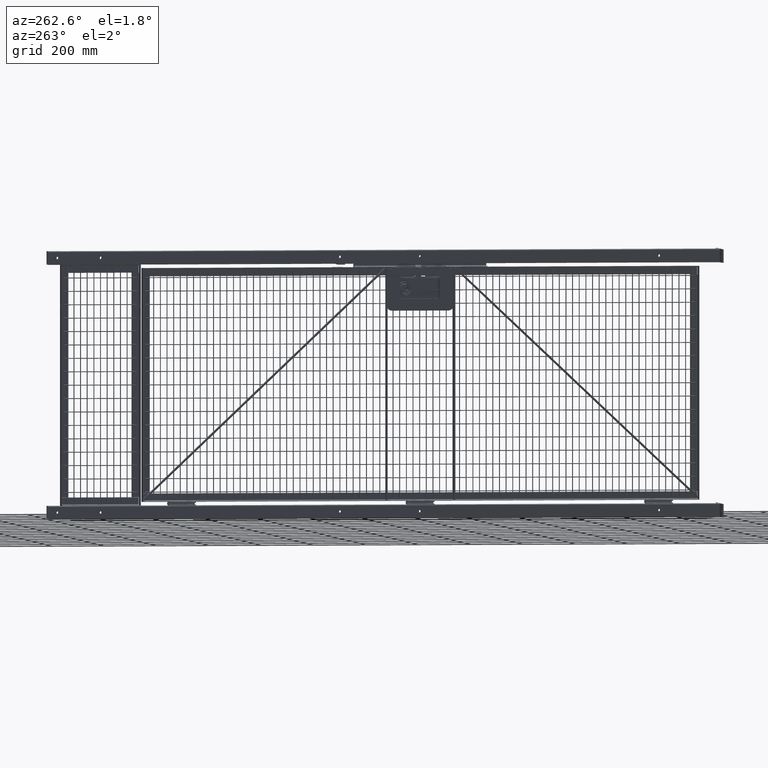
[diagram: clean part render]
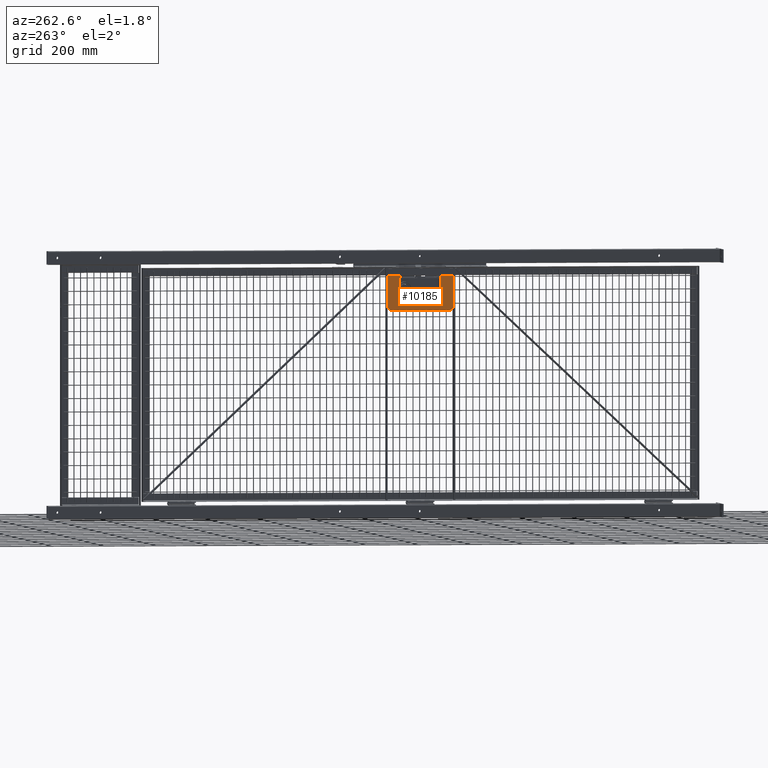
[diagram: same view with one face highlighted and labeled with its STEP entity id]
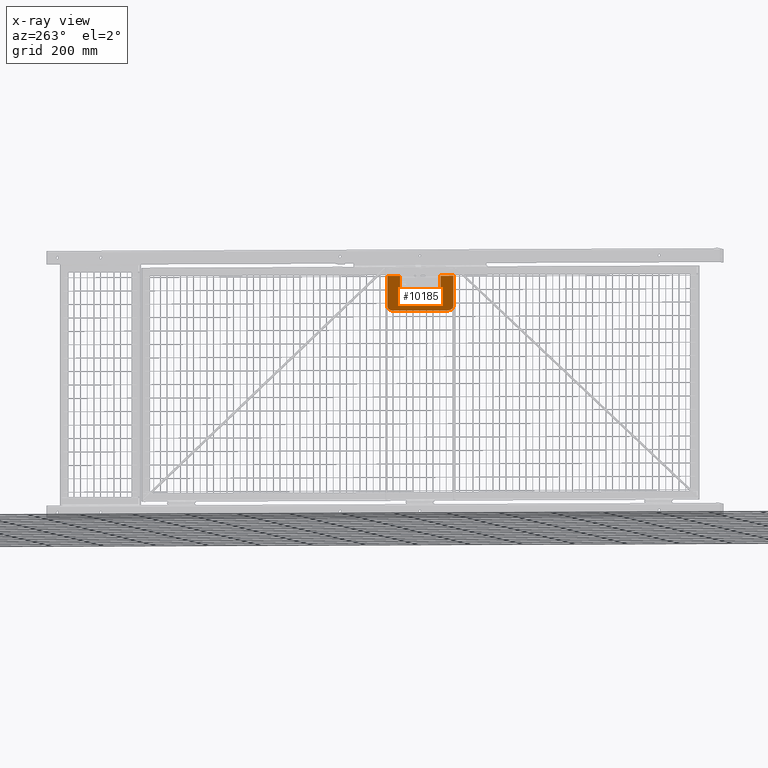
[diagram: x-ray of the same camera — body ghosted, the highlighted face saturated]
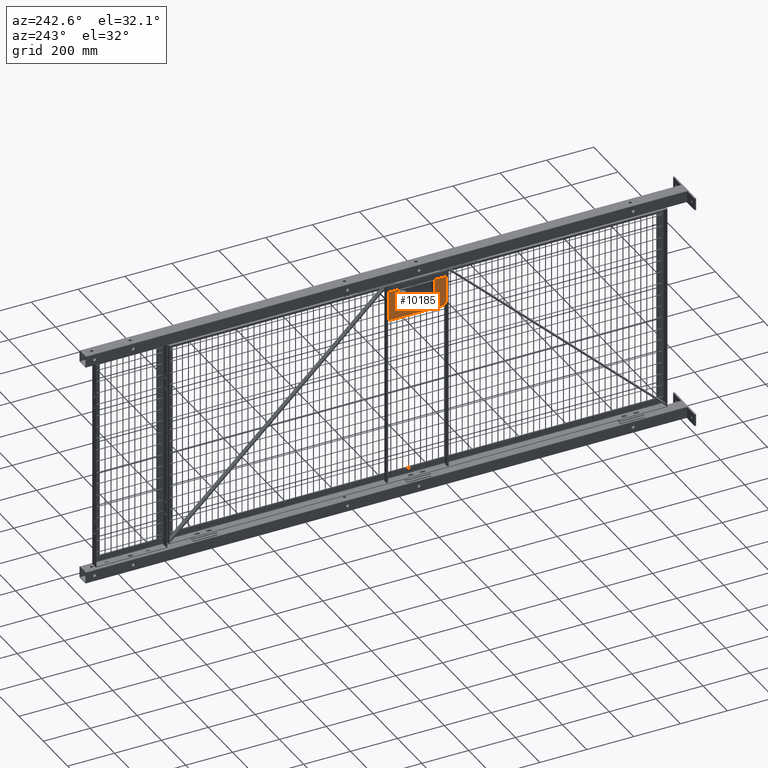
[diagram: same view with one face highlighted and labeled with its STEP entity id]
A machine part, auxiliary view. The second image highlights one B-rep face of the part: STEP entity #10185.
The next image is the same camera in x-ray: the body ghosted, the highlighted face saturated — about 0% of this face is hidden behind the body in this view.
A second angle (auxiliary view) of the same face is appended — the face is thin or edge-on in the first view.
In plain terms, the highlighted planar face has unit normal (1, -0, -0).
Its self-contained STEP definition (entity closure, byte-faithful):
#9878=CARTESIAN_POINT('',(0.125000000000000,9.938000000011927,0.0));
#9879=VERTEX_POINT('',#9878);
#9919=CARTESIAN_POINT('',(0.125000000000000,8.019035472938494,0.0));
#9920=VERTEX_POINT('',#9919);
#9974=CARTESIAN_POINT('',(0.125000000000000,8.019035472938494,0.0));
#9975=DIRECTION('',(0.0,1.0,0.0));
#9976=VECTOR('',#9975,1.918964527073433);
#9977=LINE('',#9974,#9976);
#9978=EDGE_CURVE('',#9920,#9879,#9977,.T.);
#10026=CARTESIAN_POINT('',(0.125000000000000,0.0,0.0));
#10027=VERTEX_POINT('',#10026);
#10075=CARTESIAN_POINT('',(0.125000000000000,1.919034540364489,0.0));
#10076=VERTEX_POINT('',#10075);
#10104=CARTESIAN_POINT('',(0.125000000000000,0.0,0.0));
#10105=DIRECTION('',(0.0,1.0,0.0));
#10106=VECTOR('',#10105,1.919034540364489);
#10107=LINE('',#10104,#10106);
#10108=EDGE_CURVE('',#10027,#10076,#10107,.T.);
#10114=CARTESIAN_POINT('',(3.026628751934081,4.969260063862457,0.0));
#10115=DIRECTION('',(0.0,0.0,1.0));
#10116=DIRECTION('',(1.0,0.0,0.0));
#10117=AXIS2_PLACEMENT_3D('',#10114,#10115,#10116);
#10118=PLANE('',#10117);
#10119=ORIENTED_EDGE('',*,*,#10108,.T.);
#10120=CARTESIAN_POINT('',(3.594054961578706,1.919993119905144,0.0));
#10121=VERTEX_POINT('',#10120);
#10122=CARTESIAN_POINT('',(3.594054961578706,1.919993119905144,0.0));
#10123=DIRECTION('',(-0.999999961822813,-0.000276322950970,0.0));
#10124=VECTOR('',#10123,3.469055094017473);
#10125=LINE('',#10122,#10124);
#10126=EDGE_CURVE('',#10121,#10076,#10125,.T.);
#10127=ORIENTED_EDGE('',*,*,#10126,.F.);
#10128=CARTESIAN_POINT('',(3.594054961578706,8.019993119893798,0.0));
#10129=VERTEX_POINT('',#10128);
#10130=CARTESIAN_POINT('',(3.594054961578706,8.019993119893798,0.0));
#10131=DIRECTION('',(0.0,-1.0,0.0));
#10132=VECTOR('',#10131,6.099999999988654);
#10133=LINE('',#10130,#10132);
#10134=EDGE_CURVE('',#10129,#10121,#10133,.T.);
#10135=ORIENTED_EDGE('',*,*,#10134,.F.);
#10136=CARTESIAN_POINT('',(0.125000000000000,8.019035472938494,0.0));
#10137=DIRECTION('',(0.999999961897060,0.000276054121200,0.0));
#10138=VECTOR('',#10137,3.469055093759904);
#10139=LINE('',#10136,#10138);
#10140=EDGE_CURVE('',#9920,#10129,#10139,.T.);
#10141=ORIENTED_EDGE('',*,*,#10140,.F.);
#10142=ORIENTED_EDGE('',*,*,#9978,.T.);
#10143=CARTESIAN_POINT('',(4.547125000005168,9.938000000011927,0.0));
#10144=VERTEX_POINT('',#10143);
#10145=CARTESIAN_POINT('',(4.547125000005168,9.938000000011927,0.0));
#10146=DIRECTION('',(-1.0,0.0,0.0));
#10147=VECTOR('',#10146,4.422125000005167);
#10148=LINE('',#10145,#10147);
#10149=EDGE_CURVE('',#10144,#9879,#10148,.T.);
#10150=ORIENTED_EDGE('',*,*,#10149,.F.);
#10151=CARTESIAN_POINT('',(5.297125000005167,9.188000000011927,0.0));
#10152=VERTEX_POINT('',#10151);
#10153=CARTESIAN_POINT('',(4.547125000005168,9.188000000011927,0.0));
#10154=DIRECTION('',(0.0,0.0,1.0));
#10155=DIRECTION('',(1.0,0.0,0.0));
#10156=AXIS2_PLACEMENT_3D('',#10153,#10154,#10155);
#10157=CIRCLE('',#10156,0.750000000000000);
#10158=EDGE_CURVE('',#10152,#10144,#10157,.T.);
#10159=ORIENTED_EDGE('',*,*,#10158,.F.);
#10160=CARTESIAN_POINT('',(5.297125000005167,0.749999999999886,0.0));
#10161=VERTEX_POINT('',#10160);
#10162=CARTESIAN_POINT('',(5.297125000005167,0.749999999999886,0.0));
#10163=DIRECTION('',(0.0,1.0,0.0));
#10164=VECTOR('',#10163,8.438000000012039);
#10165=LINE('',#10162,#10164);
#10166=EDGE_CURVE('',#10161,#10152,#10165,.T.);
#10167=ORIENTED_EDGE('',*,*,#10166,.F.);
#10168=CARTESIAN_POINT('',(4.547125000005168,-1.136449E-013,0.0));
#10169=VERTEX_POINT('',#10168);
#10170=CARTESIAN_POINT('',(4.547125000005168,0.749999999999886,0.0));
#10171=DIRECTION('',(0.0,0.0,1.0));
#10172=DIRECTION('',(0.0,-1.0,0.0));
#10173=AXIS2_PLACEMENT_3D('',#10170,#10171,#10172);
#10174=CIRCLE('',#10173,0.750000000000000);
#10175=EDGE_CURVE('',#10169,#10161,#10174,.T.);
#10176=ORIENTED_EDGE('',*,*,#10175,.F.);
#10177=CARTESIAN_POINT('',(0.125000000000000,-3.124086E-015,0.0));
#10178=DIRECTION('',(1.0,0.0,0.0));
#10179=VECTOR('',#10178,4.422125000005168);
#10180=LINE('',#10177,#10179);
#10181=EDGE_CURVE('',#10027,#10169,#10180,.T.);
#10182=ORIENTED_EDGE('',*,*,#10181,.F.);
#10183=EDGE_LOOP('',(#10119,#10127,#10135,#10141,#10142,#10150,#10159,#10167,#10176,#10182));
#10184=FACE_OUTER_BOUND('',#10183,.T.);
#10185=ADVANCED_FACE('',(#10184),#10118,.F.);